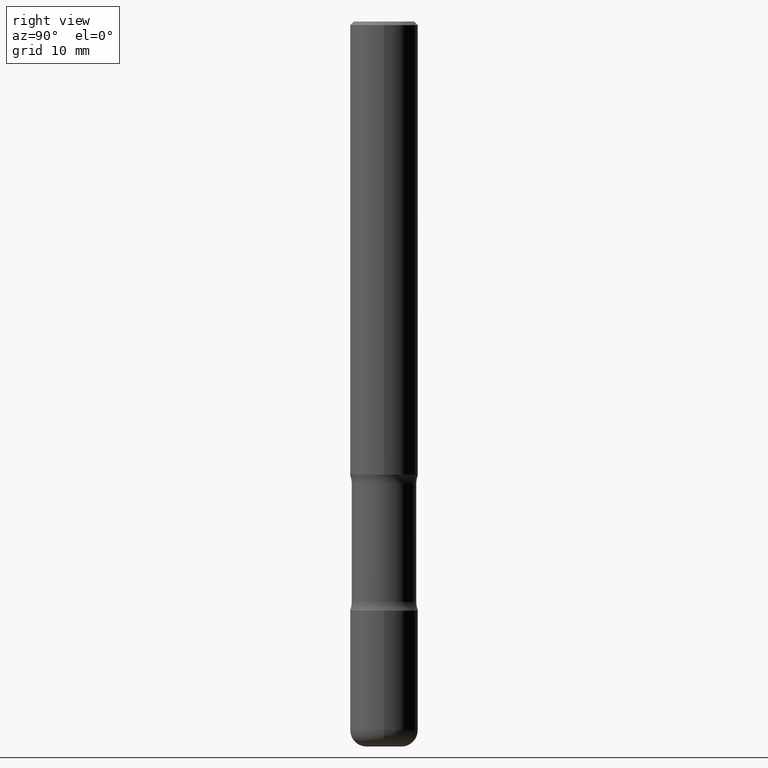
[diagram: clean part render]
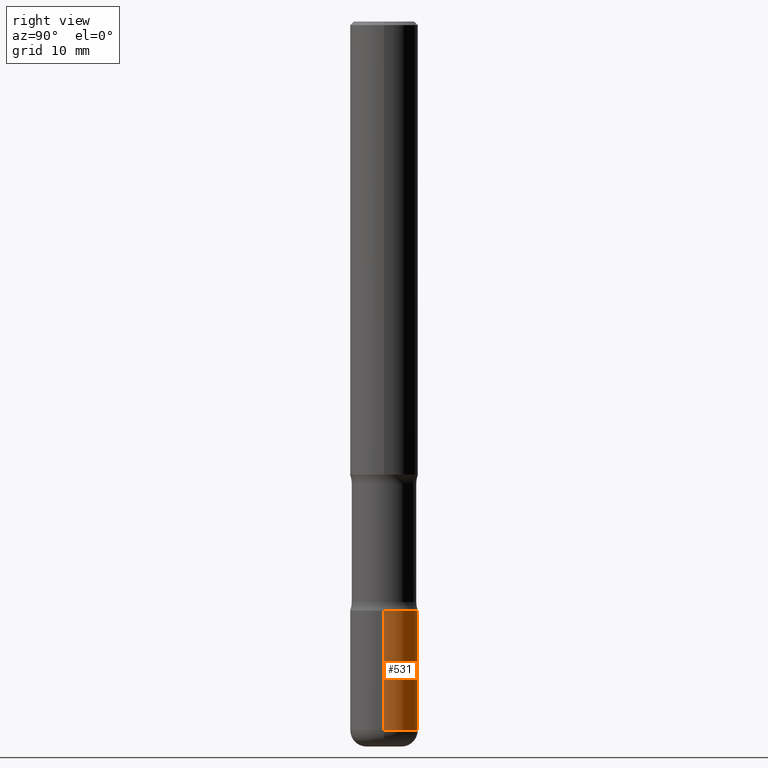
[diagram: same view with one face highlighted and labeled with its STEP entity id]
A machine part, right view. The second image highlights one B-rep face of the part: STEP entity #531.
In plain terms, the highlighted cylindrical surface (edge-blend (fillet) strip) has radius 4.7625 mm, axis along (-0, 0, 1).
Its self-contained STEP definition (entity closure, byte-faithful):
#8 = CIRCLE ( 'NONE', #412, 0.1875000000000001110 ) ;
#11 = CARTESIAN_POINT ( 'NONE',  ( -0.1875000000000000833, -1.116723556350827469E-14, -3.250000000000000444 ) ) ;
#26 = AXIS2_PLACEMENT_3D ( 'NONE', #177, #351, #524 ) ;
#32 = EDGE_CURVE ( 'NONE', #544, #59, #231, .T. ) ;
#50 = FACE_OUTER_BOUND ( 'NONE', #498, .T. ) ;
#54 = DIRECTION ( 'NONE',  ( -2.445468806185136597E-29, 3.491481338843145583E-15, 1.000000000000000000 ) ) ;
#59 = VERTEX_POINT ( 'NONE', #260 ) ;
#62 = DIRECTION ( 'NONE',  ( -2.445468806185136877E-29, 3.491481338843145188E-15, 1.000000000000000000 ) ) ;
#66 = VECTOR ( 'NONE', #62, 39.37007874015748143 ) ;
#105 = ORIENTED_EDGE ( 'NONE', *, *, #113, .F. ) ;
#113 = EDGE_CURVE ( 'NONE', #59, #496, #142, .T. ) ;
#140 = DIRECTION ( 'NONE',  ( 1.000000000000000000, -6.982962677686269077E-15, 0.000000000000000000 ) ) ;
#142 = CIRCLE ( 'NONE', #26, 0.1875000000000000833 ) ;
#175 = DIRECTION ( 'NONE',  ( -2.445468806185136877E-29, 3.491481338843145188E-15, 1.000000000000000000 ) ) ;
#177 = CARTESIAN_POINT ( 'NONE',  ( 7.947773620101696182E-29, -1.134731435124022600E-14, -3.250000000000000444 ) ) ;
#192 = VERTEX_POINT ( 'NONE', #452 ) ;
#197 = LINE ( 'NONE', #325, #66 ) ;
#204 = EDGE_CURVE ( 'NONE', #192, #496, #197, .T. ) ;
#225 = DIRECTION ( 'NONE',  ( -2.445468806185136597E-29, 3.491481338843145583E-15, 1.000000000000000000 ) ) ;
#231 = LINE ( 'NONE', #400, #512 ) ;
#243 = ORIENTED_EDGE ( 'NONE', *, *, #464, .T. ) ;
#252 = CYLINDRICAL_SURFACE ( 'NONE', #538, 0.1875000000000001110 ) ;
#260 = CARTESIAN_POINT ( 'NONE',  ( 0.1875000000000000833, -1.265661985330640259E-14, -3.250000000000000444 ) ) ;
#278 = ORIENTED_EDGE ( 'NONE', *, *, #32, .F. ) ;
#325 = CARTESIAN_POINT ( 'NONE',  ( -0.1875000000000001110, 1.332267629550188637E-15, -9.223003294227953596E-30 ) ) ;
#351 = DIRECTION ( 'NONE',  ( -2.445468806185136597E-29, 3.491481338843145583E-15, 1.000000000000000000 ) ) ;
#353 = DIRECTION ( 'NONE',  ( 1.000000000000000000, -6.982962677686266711E-15, 4.876176775795935793E-29 ) ) ;
#371 = CARTESIAN_POINT ( 'NONE',  ( 0.1875000000000002220, -1.496099753694287723E-14, -3.910000000000000142 ) ) ;
#400 = CARTESIAN_POINT ( 'NONE',  ( 0.1875000000000001110, -1.309305502066175797E-15, 9.142831454617385217E-30 ) ) ;
#412 = AXIS2_PLACEMENT_3D ( 'NONE', #492, #54, #140 ) ;
#422 = CARTESIAN_POINT ( 'NONE',  ( 0.000000000000000000, 0.000000000000000000, 0.000000000000000000 ) ) ;
#452 = CARTESIAN_POINT ( 'NONE',  ( -0.1875000000000002220, -1.231942440532651122E-14, -3.910000000000000142 ) ) ;
#464 = EDGE_CURVE ( 'NONE', #544, #192, #8, .T. ) ;
#492 = CARTESIAN_POINT ( 'NONE',  ( 9.561783032183883600E-29, -1.365169203487670064E-14, -3.910000000000000142 ) ) ;
#496 = VERTEX_POINT ( 'NONE', #11 ) ;
#498 = EDGE_LOOP ( 'NONE', ( #243, #534, #105, #278 ) ) ;
#512 = VECTOR ( 'NONE', #175, 39.37007874015748143 ) ;
#524 = DIRECTION ( 'NONE',  ( 1.000000000000000000, -6.982962677686269866E-15, 0.000000000000000000 ) ) ;
#531 = ADVANCED_FACE ( 'NONE', ( #50 ), #252, .T. ) ;
#534 = ORIENTED_EDGE ( 'NONE', *, *, #204, .T. ) ;
#538 = AXIS2_PLACEMENT_3D ( 'NONE', #422, #225, #353 ) ;
#544 = VERTEX_POINT ( 'NONE', #371 ) ;